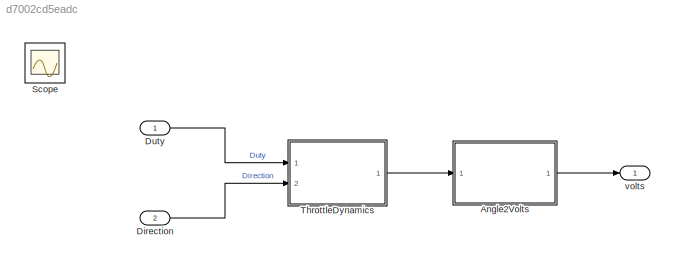
MODEL slx_d7002cd5eadc
KIND model
CONFIG AbsTol = auto
CONFIG EnableMultiTasking = on
CONFIG FixedStep = auto
CONFIG MaxStep = auto
CONFIG MinStep = auto
CONFIG PreLoadFcn = etc_plant_data;
CONFIG RelTol = 1e-3
CONFIG SampleTimeConstraint = Unconstrained
CONFIG Solver = ode45
CONFIG SolverName = ode45
CONFIG StartTime = 0.0
CONFIG StopTime = 20.0
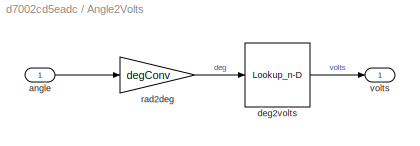
BLOCK [SubSystem] Angle2Volts
  Ports = [1, 1]
  RequestExecContextInheritance = off
BLOCK [Inport] Angle2Volts/angle 
  IconDisplay = Port number
BLOCK [Lookup_n-D] Angle2Volts/deg2volts
  BreakpointsForDimension1 = [0 90]
  NumberOfTableDimensions = 1
  Ports = [1, 1]
  RndMeth = Simplest
  Table = [0.5 4.5]
BLOCK [Gain] Angle2Volts/rad2deg
  Gain = degConv
BLOCK [Outport] Angle2Volts/volts
  IconDisplay = Port number
BLOCK [Inport] Direction
  IconDisplay = Port number
  Port = 2
BLOCK [Inport] Duty
  IconDisplay = Port number
BLOCK [Scope] Scope
  Floating = off
  IOType = viewer
  NumInputPorts = 1
  Ports = []
  ScopeSpecificationString = Simulink.scopes.TimeScopeBlockCfg('CurrentConfiguration', extmgr.ConfigurationSet(extmgr.Configuration('Core','General UI',true),extmgr.Configuration('Core','Source UI',true),extmgr.Configuration('Sources','WiredSimulink',true,'DataLoggingMaxPoints','7500','DataLoggingLimitDataPoints',true,'DataLoggingSaveFormat','Array','DataLoggingDecimation','1','DataLoggingDecimateData',true),extmgr.Configurat...<+1881ch>
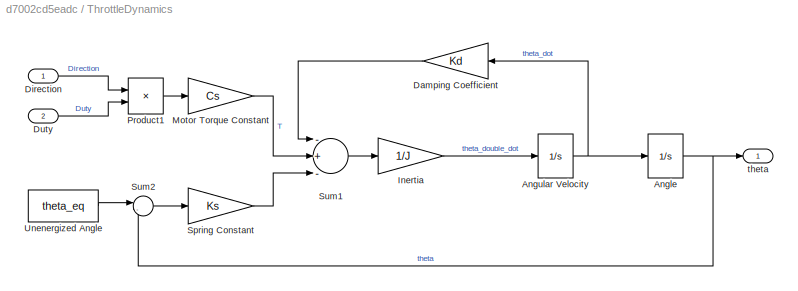
BLOCK [SubSystem] ThrottleDynamics
  Ports = [2, 1]
  RequestExecContextInheritance = off
BLOCK [Integrator] ThrottleDynamics/Angle
  AttributesFormatString = Initial condition: %<InitialCondition>\n%<LowerSaturationLimit> <= theta <= %<UpperSaturationLimit>
  InitialCondition = pi/6
  LimitOutput = on
  LowerSaturationLimit = 0
  Ports = [1, 1]
  UpperSaturationLimit = pi/2
BLOCK [Integrator] ThrottleDynamics/Angular Velocity
  AttributesFormatString = Initial condition: %<InitialCondition>
  Ports = [1, 1]
BLOCK [Gain] ThrottleDynamics/Damping Coefficient
  Gain = Kd
BLOCK [Inport] ThrottleDynamics/Direction
  IconDisplay = Port number
BLOCK [Inport] ThrottleDynamics/Duty
  IconDisplay = Port number
  Port = 2
BLOCK [Gain] ThrottleDynamics/Inertia
  Gain = 1/J
BLOCK [Gain] ThrottleDynamics/Motor Torque Constant
  Gain = Cs
BLOCK [Product] ThrottleDynamics/Product1
  InputSameDT = off
  Ports = [2, 1]
  RndMeth = Floor
BLOCK [Gain] ThrottleDynamics/Spring Constant
  Gain = Ks
BLOCK [Sum] ThrottleDynamics/Sum1
  InputSameDT = off
  Inputs = -+-
  OutDataTypeStr = Inherit: Inherit via internal rule
  Ports = [3, 1]
BLOCK [Sum] ThrottleDynamics/Sum2
  IconShape = round
  InputSameDT = off
  Inputs = |-+
  OutDataTypeStr = Inherit: Inherit via internal rule
  Ports = [2, 1]
BLOCK [Constant] ThrottleDynamics/Unenergized Angle
  Value = theta_eq
BLOCK [Outport] ThrottleDynamics/theta
  IconDisplay = Port number
BLOCK [Outport] volts
  IconDisplay = Port number
LINE Angle2Volts/angle :1 -> Angle2Volts/rad2deg:1
LINE Angle2Volts/deg2volts:1 -> Angle2Volts/volts:1
LINE Angle2Volts/rad2deg:1 -> Angle2Volts/deg2volts:1
LINE Angle2Volts:1 -> volts:1
LINE Direction:1 -> ThrottleDynamics:2
LINE Duty:1 -> ThrottleDynamics:1
NET ThrottleDynamics/Angle:1 -> ThrottleDynamics/Sum2:2, ThrottleDynamics/theta:1
NET ThrottleDynamics/Angular Velocity:1 -> ThrottleDynamics/Angle:1, ThrottleDynamics/Damping Coefficient:1
LINE ThrottleDynamics/Damping Coefficient:1 -> ThrottleDynamics/Sum1:1
LINE ThrottleDynamics/Direction:1 -> ThrottleDynamics/Product1:1
LINE ThrottleDynamics/Duty:1 -> ThrottleDynamics/Product1:2
LINE ThrottleDynamics/Inertia:1 -> ThrottleDynamics/Angular Velocity:1
LINE ThrottleDynamics/Motor Torque Constant:1 -> ThrottleDynamics/Sum1:2
LINE ThrottleDynamics/Product1:1 -> ThrottleDynamics/Motor Torque Constant:1
LINE ThrottleDynamics/Spring Constant:1 -> ThrottleDynamics/Sum1:3
LINE ThrottleDynamics/Sum1:1 -> ThrottleDynamics/Inertia:1
LINE ThrottleDynamics/Sum2:1 -> ThrottleDynamics/Spring Constant:1
LINE ThrottleDynamics/Unenergized Angle:1 -> ThrottleDynamics/Sum2:1
LINE ThrottleDynamics:1 -> Angle2Volts:1
note: NET lines group one-source signal fan-out (src -> all destinations, sorted); 1:1 wires keep LINE
